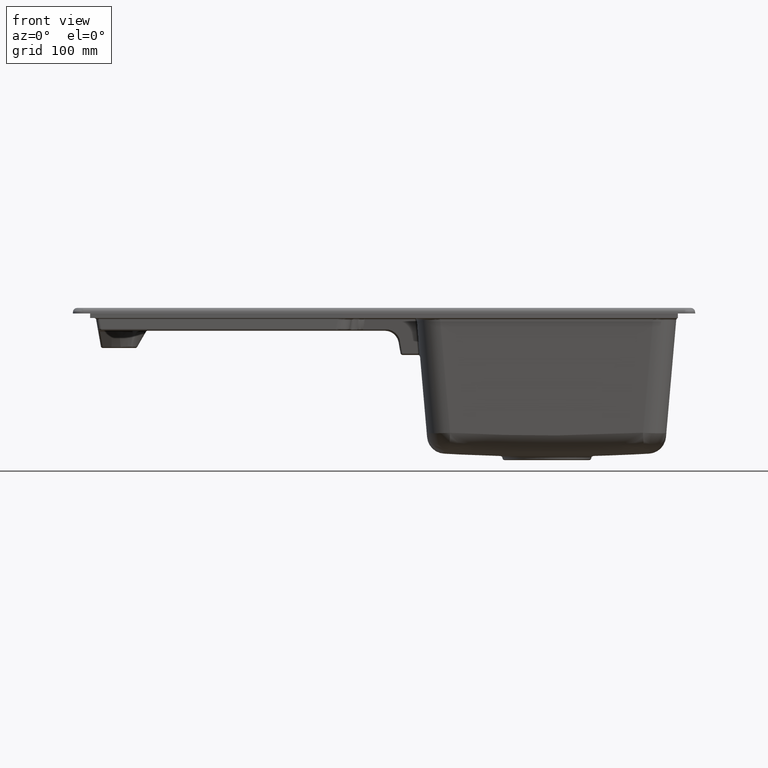
[diagram: clean part render]
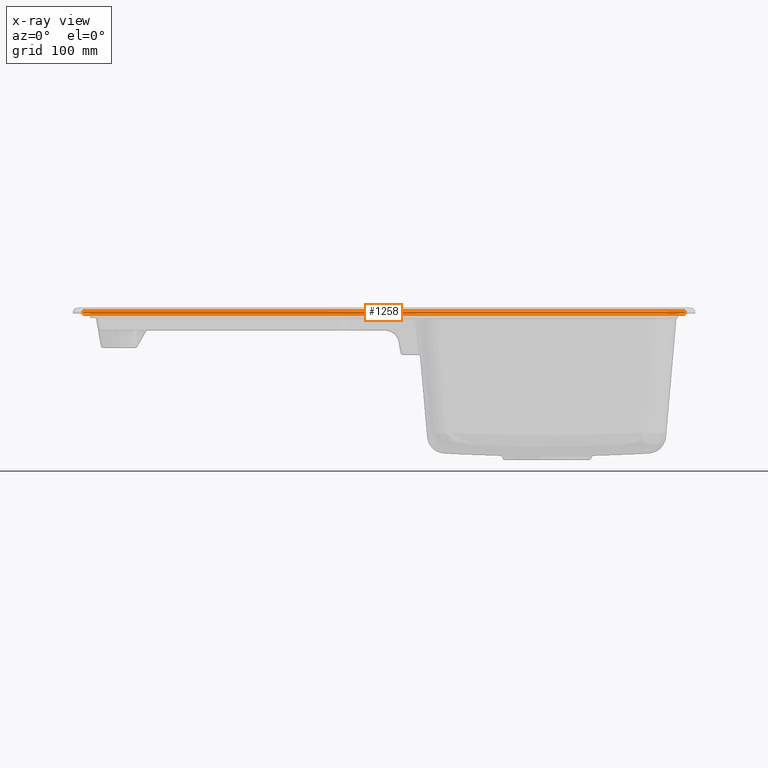
[diagram: x-ray — body ghosted, one internal face saturated and labeled with its STEP entity id]
A machine part, front view, then the same camera in x-ray: the body is ghosted and one INTERNAL B-rep face — a face not visible from any outside direction — is saturated and labeled: STEP entity #1258.
In plain terms, the highlighted planar face has unit normal (0, -0.9945, 0.1045).
Its self-contained STEP definition (entity closure, byte-faithful):
#273=PLANE('',#5339);
#720=LINE('',#8269,#952);
#773=LINE('',#10674,#1005);
#774=LINE('',#10678,#1006);
#775=LINE('',#10680,#1007);
#952=VECTOR('',#5796,1.);
#1005=VECTOR('',#6047,1.);
#1006=VECTOR('',#6052,1.);
#1007=VECTOR('',#6053,1.);
#1258=ADVANCED_FACE('',(#1613),#273,.T.);
#1613=FACE_OUTER_BOUND('',#1945,.T.);
#1945=EDGE_LOOP('',(#2628,#2629,#2630,#2631));
#2628=ORIENTED_EDGE('',*,*,#4460,.T.);
#2629=ORIENTED_EDGE('',*,*,#4274,.T.);
#2630=ORIENTED_EDGE('',*,*,#4462,.F.);
#2631=ORIENTED_EDGE('',*,*,#4463,.F.);
#3797=VERTEX_POINT('',#8231);
#3800=VERTEX_POINT('',#8267);
#3921=VERTEX_POINT('',#10675);
#3922=VERTEX_POINT('',#10679);
#4274=EDGE_CURVE('',#3800,#3797,#720,.T.);
#4460=EDGE_CURVE('',#3921,#3800,#773,.T.);
#4462=EDGE_CURVE('',#3922,#3797,#774,.T.);
#4463=EDGE_CURVE('',#3921,#3922,#775,.T.);
#5339=AXIS2_PLACEMENT_3D('',#10681,#6054,#6055);
#5796=DIRECTION('',(-1.,-3.70074341541719E-16,6.24183403791665E-33));
#6047=DIRECTION('',(-0.103962051184498,0.103962051184498,0.989132844377854));
#6052=DIRECTION('',(0.103962051184498,0.103962051184498,0.989132844377854));
#6053=DIRECTION('',(-1.,-3.70074341541719E-16,0.));
#6054=DIRECTION('',(3.68047035577236E-16,-0.994521895368273,0.104528463267653));
#6055=DIRECTION('',(0.,0.104528463267653,0.994521895368273));
#8231=CARTESIAN_POINT('',(-434.806044793773,-254.723873224298,-5.37282922039411));
#8267=CARTESIAN_POINT('',(434.806044793773,-254.723873224297,-5.37282922039405));
#8269=CARTESIAN_POINT('',(450.,-254.723873224297,-5.37282922039408));
#10674=CARTESIAN_POINT('',(435.243405071569,-255.161233502093,-9.53403430114146));
#10675=CARTESIAN_POINT('',(435.082171569476,-255.,-7.99999999999998));
#10678=CARTESIAN_POINT('',(-425.516107793729,-245.433936224254,83.015017154789));
#10679=CARTESIAN_POINT('',(-435.082171569476,-255.,-8.00000000000001));
#10680=CARTESIAN_POINT('',(-450.,-255.,-8.));
#10681=CARTESIAN_POINT('',(450.,-255.,-8.));